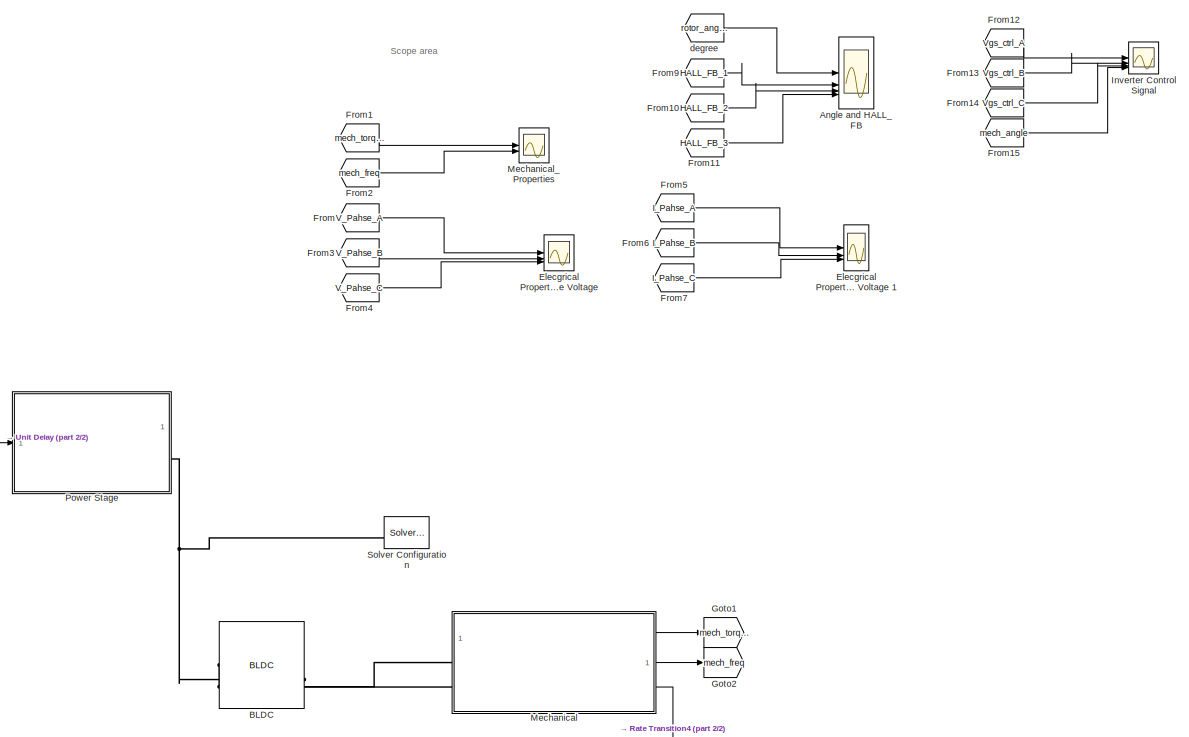
[diagram: root canvas - part 1/2, right side, full height]
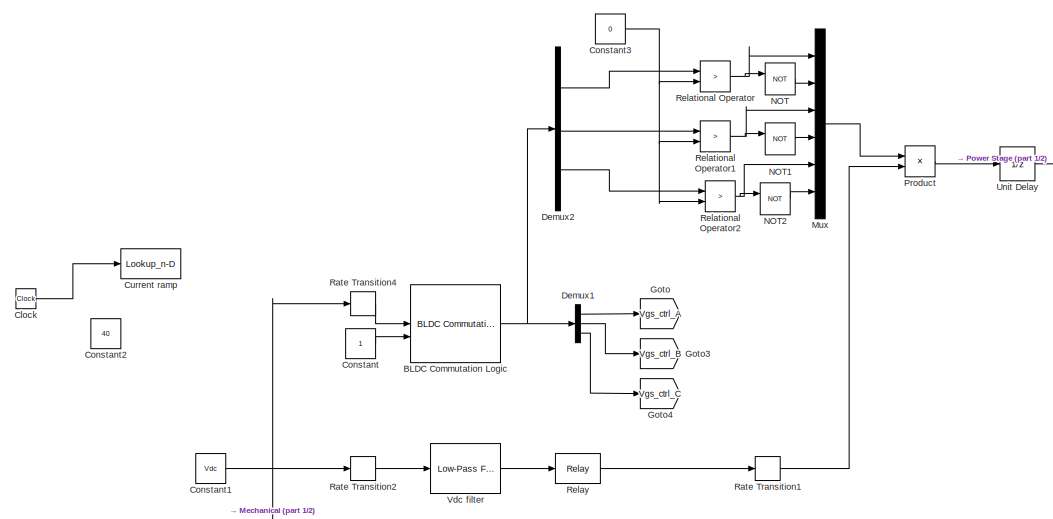
[diagram: root canvas - part 2/2, middle left region]
MODEL slx_6b9ccae32374
KIND model
CONFIG AbsTol = auto
CONFIG EnableMultiTasking = off
CONFIG FixedStep = auto
CONFIG MaxStep = auto
CONFIG MinStep = auto
CONFIG RelTol = 1e-3
CONFIG SampleTimeConstraint = Unconstrained
CONFIG SolverName = VariableStepAuto
CONFIG StartTime = 0.0
CONFIG StopTime = 1
BLOCK [Scope] Angle and HALL_FB
  Floating = off
  NumInputPorts = 4
  ScopeSpecificationString = Simulink.scopes.TimeScopeBlockCfg('CurrentConfiguration', extmgr.ConfigurationSet(extmgr.Configuration('Core','General UI',true),extmgr.Configuration('Core','Source UI',true),extmgr.Configuration('Sources','WiredSimulink',true,'DataLoggingVariableName','ScopeData4'),extmgr.Configuration('Visuals','Time Domain',true,'SerializedDisplays',{struct('MinYLimReal','-171.66121','MaxYLimReal','171.45367','...<+4105ch>
BLOCK [Reference] BLDC  REF=ee_lib/Electromechanical/Permanent Magnet/BLDC
  SourceBlock = ee_lib/Electromechanical/Permanent Magnet/BLDC
  SourceType = BLDC
BLOCK [Reference] BLDC Commutation Logic  REF=eeBldcCommutationLogic/BLDC Commutation Logic
  SourceBlock = eeBldcCommutationLogic/BLDC Commutation Logic
  SourceType = BLDC Commutation Logic
BLOCK [Clock] Clock
  Commented = on
BLOCK [Constant] Constant
BLOCK [Constant] Constant1
  Value = Vdc
  VectorParams1D = off
BLOCK [Constant] Constant2
  Value = 40
BLOCK [Constant] Constant3
  Value = 0
BLOCK [Lookup_n-D] Current ramp
  BreakpointsForDimension1 = [0 0.5 1]
  Commented = on
  InputPortMap = u0
  InternalRulePriority = Speed
  NumberOfTableDimensions = 1
  RndMeth = Simplest
  Table = [0 iref iref]
BLOCK [Demux] Demux1
  Outputs = 3
BLOCK [Demux] Demux2
  Outputs = 3
BLOCK [Scope] Elecgrical Properties Phase Voltage 
  Floating = off
  NumInputPorts = 3
  ScopeSpecificationString = Simulink.scopes.TimeScopeBlockCfg('CurrentConfiguration', extmgr.ConfigurationSet(extmgr.Configuration('Core','General UI',true),extmgr.Configuration('Core','Source UI',true),extmgr.Configuration('Sources','WiredSimulink',true,'DataLoggingVariableName','ScopeData3'),extmgr.Configuration('Visuals','Time Domain',true,'SerializedDisplays',{struct('MinYLimReal','-7.28133','MaxYLimReal','55.16499','YLa...<+2946ch>
BLOCK [Scope] Elecgrical Properties Phase Voltage 1
  Floating = off
  NumInputPorts = 3
  ScopeSpecificationString = Simulink.scopes.TimeScopeBlockCfg('CurrentConfiguration', extmgr.ConfigurationSet(extmgr.Configuration('Core','General UI',true),extmgr.Configuration('Core','Source UI',true),extmgr.Configuration('Sources','WiredSimulink',true,'DataLoggingVariableName','ScopeData1'),extmgr.Configuration('Visuals','Time Domain',true,'SerializedDisplays',{struct('MinYLimReal','-7.29838','MaxYLimReal','55.17035','YLa...<+2927ch>
BLOCK [From] From
  GotoTag = V_Pahse_A
  TagVisibility = global
BLOCK [From] From1
  GotoTag = mech_torque
BLOCK [From] From10
  GotoTag = HALL_FB_2
  TagVisibility = global
BLOCK [From] From11
  GotoTag = HALL_FB_3
  TagVisibility = global
BLOCK [From] From12
  GotoTag = Vgs_ctrl_A
  TagVisibility = global
BLOCK [From] From13
  GotoTag = Vgs_ctrl_B
  TagVisibility = global
BLOCK [From] From14
  GotoTag = Vgs_ctrl_C
  TagVisibility = global
BLOCK [From] From15
  GotoTag = mech_angle
  TagVisibility = global
BLOCK [From] From2
  GotoTag = mech_freq
BLOCK [From] From3
  GotoTag = V_Pahse_B
  TagVisibility = global
BLOCK [From] From4
  GotoTag = V_Pahse_C
  TagVisibility = global
BLOCK [From] From5
  GotoTag = I_Pahse_A
  TagVisibility = global
BLOCK [From] From6
  GotoTag = I_Pahse_B
  TagVisibility = global
BLOCK [From] From7
  GotoTag = I_Pahse_C
  TagVisibility = global
BLOCK [From] From9
  GotoTag = HALL_FB_1
  TagVisibility = global
BLOCK [Goto] Goto
  GotoTag = Vgs_ctrl_A
  TagVisibility = global
BLOCK [Goto] Goto1
  GotoTag = mech_torque
BLOCK [Goto] Goto2
  GotoTag = mech_freq
BLOCK [Goto] Goto3
  GotoTag = Vgs_ctrl_B
  TagVisibility = global
BLOCK [Goto] Goto4
  GotoTag = Vgs_ctrl_C
  TagVisibility = global
BLOCK [Scope] Inverter Control Signal
  Floating = off
  NumInputPorts = 4
  ScopeSpecificationString = Simulink.scopes.TimeScopeBlockCfg('CurrentConfiguration', extmgr.ConfigurationSet(extmgr.Configuration('Core','General UI',true),extmgr.Configuration('Core','Source UI',true),extmgr.Configuration('Sources','WiredSimulink',true,'DataLoggingVariableName','ScopeData1'),extmgr.Configuration('Visuals','Time Domain',true,'SerializedDisplays',{struct('MinYLimReal','-1.01815','MaxYLimReal','1.11895','YLab...<+4090ch>
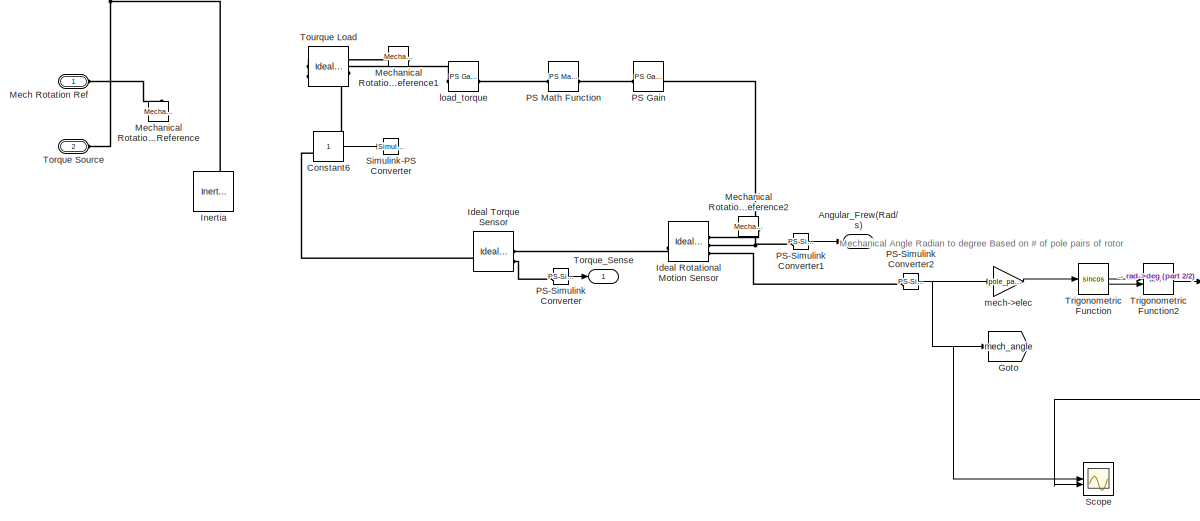
[diagram: Mechanical - part 1/2, center side, full height]
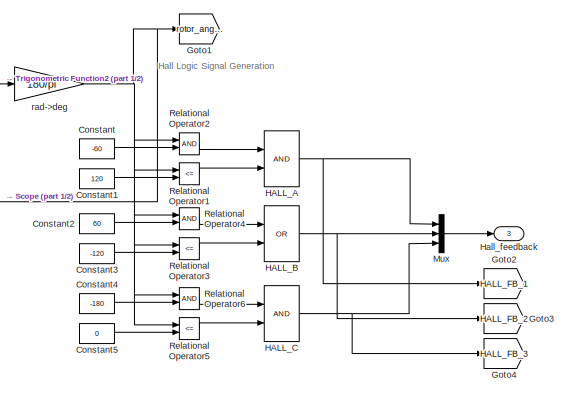
[diagram: Mechanical - part 2/2, bottom right region]
BLOCK [SubSystem] Mechanical
BLOCK [Outport] Mechanical/Angular_Frew(Rad//s)
  Port = 2
BLOCK [Constant] Mechanical/Constant
  Value = -60
BLOCK [Constant] Mechanical/Constant1
  Value = 120
BLOCK [Constant] Mechanical/Constant2
  Value = 60
BLOCK [Constant] Mechanical/Constant3
  Value = -120
BLOCK [Constant] Mechanical/Constant4
  Value = -180
BLOCK [Constant] Mechanical/Constant5
  Value = 0
BLOCK [Constant] Mechanical/Constant6
  Commented = on
BLOCK [Goto] Mechanical/Goto
  GotoTag = mech_angle
  TagVisibility = global
BLOCK [Goto] Mechanical/Goto1
  GotoTag = rotor_angle_degree
  TagVisibility = global
BLOCK [Goto] Mechanical/Goto2
  GotoTag = HALL_FB_1
  TagVisibility = global
BLOCK [Goto] Mechanical/Goto3
  GotoTag = HALL_FB_2
  TagVisibility = global
BLOCK [Goto] Mechanical/Goto4
  GotoTag = HALL_FB_3
  TagVisibility = global
BLOCK [Logic] Mechanical/HALL_A
  AllPortsSameDT = off
  OutDataTypeStr = boolean
BLOCK [Logic] Mechanical/HALL_B
  AllPortsSameDT = off
  Operator = OR
  OutDataTypeStr = boolean
BLOCK [Logic] Mechanical/HALL_C
  AllPortsSameDT = off
  OutDataTypeStr = boolean
BLOCK [Outport] Mechanical/Hall_feedback
  Port = 3
  VectorParamsAs1DForOutWhenUnconnected = off
BLOCK [Reference] Mechanical/Ideal Rotational Motion Sensor  REF=fl_lib/Mechanical/Mechanical Sensors/Ideal Rotational
Motion Sensor
  SourceBlock = fl_lib/Mechanical/Mechanical Sensors/Ideal Rotational\nMotion Sensor
  SourceType = Ideal Rotational\nMotion Sensor
BLOCK [Reference] Mechanical/Ideal Torque Sensor  REF=fl_lib/Mechanical/Mechanical Sensors/Ideal Torque Sensor
  SourceBlock = fl_lib/Mechanical/Mechanical Sensors/Ideal Torque Sensor
  SourceType = Ideal Torque Sensor
BLOCK [Reference] Mechanical/Inertia  REF=fl_lib/Mechanical/Rotational Elements/Inertia
  NameLocation = right
  SourceBlock = fl_lib/Mechanical/Rotational Elements/Inertia
  SourceType = Inertia
BLOCK [PMIOPort] Mechanical/Mech Rotation Ref
  Side = Left
BLOCK [Reference] Mechanical/Mechanical Rotational Reference  REF=fl_lib/Mechanical/Rotational Elements/Mechanical
Rotational Reference
  NameLocation = right
  SourceBlock = fl_lib/Mechanical/Rotational Elements/Mechanical\nRotational Reference
  SourceType = Mechanical\nRotational Reference
BLOCK [Reference] Mechanical/Mechanical Rotational Reference1  REF=fl_lib/Mechanical/Rotational Elements/Mechanical
Rotational Reference
  NameLocation = top
  SourceBlock = fl_lib/Mechanical/Rotational Elements/Mechanical\nRotational Reference
  SourceType = Mechanical\nRotational Reference
BLOCK [Reference] Mechanical/Mechanical Rotational Reference2  REF=fl_lib/Mechanical/Rotational Elements/Mechanical
Rotational Reference
  NameLocation = top
  SourceBlock = fl_lib/Mechanical/Rotational Elements/Mechanical\nRotational Reference
  SourceType = Mechanical\nRotational Reference
BLOCK [Mux] Mechanical/Mux
  DisplayOption = bar
  Inputs = 3
BLOCK [Reference] Mechanical/PS Gain  REF=fl_lib/Physical Signals/Functions/PS Gain
  SourceBlock = fl_lib/Physical Signals/Functions/PS Gain
  SourceType = PS Gain
BLOCK [Reference] Mechanical/PS Math Function  REF=fl_lib/Physical Signals/Functions/PS Math Function
  SourceBlock = fl_lib/Physical Signals/Functions/PS Math Function
  SourceType = PS Math Function
BLOCK [Reference] Mechanical/PS-Simulink Converter  REF=nesl_utility/PS-Simulink
Converter
  SourceBlock = nesl_utility/PS-Simulink\nConverter
  SourceType = PS-Simulink\nConverter
BLOCK [Reference] Mechanical/PS-Simulink Converter1  REF=nesl_utility/PS-Simulink
Converter
  SourceBlock = nesl_utility/PS-Simulink\nConverter
  SourceType = PS-Simulink\nConverter
BLOCK [Reference] Mechanical/PS-Simulink Converter2  REF=nesl_utility/PS-Simulink
Converter
  SourceBlock = nesl_utility/PS-Simulink\nConverter
  SourceType = PS-Simulink\nConverter
BLOCK [RelationalOperator] Mechanical/Relational Operator1
  Operator = <=
BLOCK [RelationalOperator] Mechanical/Relational Operator2
BLOCK [RelationalOperator] Mechanical/Relational Operator3
  Operator = <=
BLOCK [RelationalOperator] Mechanical/Relational Operator4
BLOCK [RelationalOperator] Mechanical/Relational Operator5
  Operator = <=
BLOCK [RelationalOperator] Mechanical/Relational Operator6
BLOCK [Scope] Mechanical/Scope
  Floating = off
  NumInputPorts = 2
  ScopeSpecificationString = Simulink.scopes.TimeScopeBlockCfg('CurrentConfiguration', extmgr.ConfigurationSet(extmgr.Configuration('Core','General UI',true),extmgr.Configuration('Core','Source UI',true),extmgr.Configuration('Sources','WiredSimulink',true,'DataLoggingVariableName','ScopeData2'),extmgr.Configuration('Visuals','Time Domain',true,'SerializedDisplays',{struct('MinYLimReal','-0.78536','MaxYLimReal','6.61575','YLab...<+2196ch>
BLOCK [Reference] Mechanical/Simulink-PS Converter  REF=nesl_utility/Simulink-PS
Converter
  Commented = on
  SourceBlock = nesl_utility/Simulink-PS\nConverter
  SourceType = Simulink-PS\nConverter
BLOCK [PMIOPort] Mechanical/Torque Source
  Port = 2
  Side = Left
BLOCK [Outport] Mechanical/Torque_Sense
BLOCK [Reference] Mechanical/Tourque Load  REF=fl_lib/Mechanical/Mechanical Sources/Ideal Torque Source
  NameLocation = top
  SourceBlock = fl_lib/Mechanical/Mechanical Sources/Ideal Torque Source
  SourceType = Ideal Torque Source
BLOCK [Trigonometry] Mechanical/Trigonometric Function
  Operator = sincos
BLOCK [Trigonometry] Mechanical/Trigonometric Function2
  Operator = atan2
BLOCK [Reference] Mechanical/load_torque  REF=fl_lib/Physical Signals/Functions/PS Gain
  SourceBlock = fl_lib/Physical Signals/Functions/PS Gain
  SourceType = PS Gain
BLOCK [Gain] Mechanical/mech->elec
  Gain = pole_pair_number
BLOCK [Gain] Mechanical/rad->deg
  Gain = 180/pi
  OutDataTypeStr = Inherit: Same as input
  ParamDataTypeStr = Inherit: Same as input
  SaturateOnIntegerOverflow = on
BLOCK [Scope] Mechanical_Properties
  Floating = off
  NumInputPorts = 2
  ScopeSpecificationString = Simulink.scopes.TimeScopeBlockCfg('CurrentConfiguration', extmgr.ConfigurationSet(extmgr.Configuration('Core','General UI',true),extmgr.Configuration('Core','Source UI',true),extmgr.Configuration('Sources','WiredSimulink',true,'DataLoggingVariableName','ScopeData2'),extmgr.Configuration('Visuals','Time Domain',true,'SerializedDisplays',{struct('MinYLimReal','-1.00000','MaxYLimReal','1.00000','YLab...<+2170ch>
BLOCK [Mux] Mux
  DisplayOption = bar
  Inputs = 6
BLOCK [Logic] NOT
  AllPortsSameDT = off
  IconShape = distinctive
  Operator = NOT
  OutDataTypeStr = boolean
BLOCK [Logic] NOT1
  AllPortsSameDT = off
  IconShape = distinctive
  Operator = NOT
  OutDataTypeStr = boolean
BLOCK [Logic] NOT2
  AllPortsSameDT = off
  IconShape = distinctive
  Operator = NOT
  OutDataTypeStr = boolean
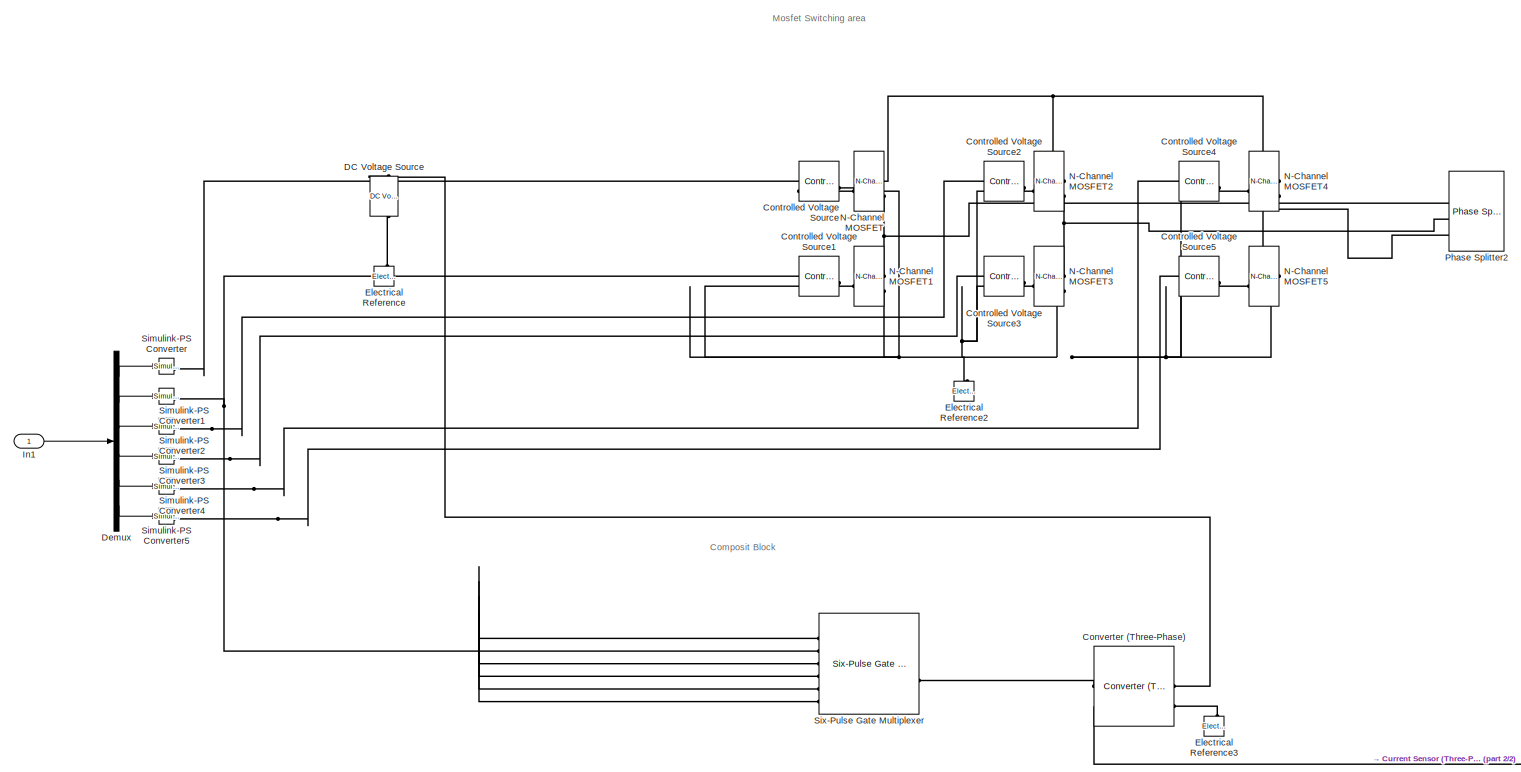
[diagram: Power Stage - part 1/2, left side, full height]
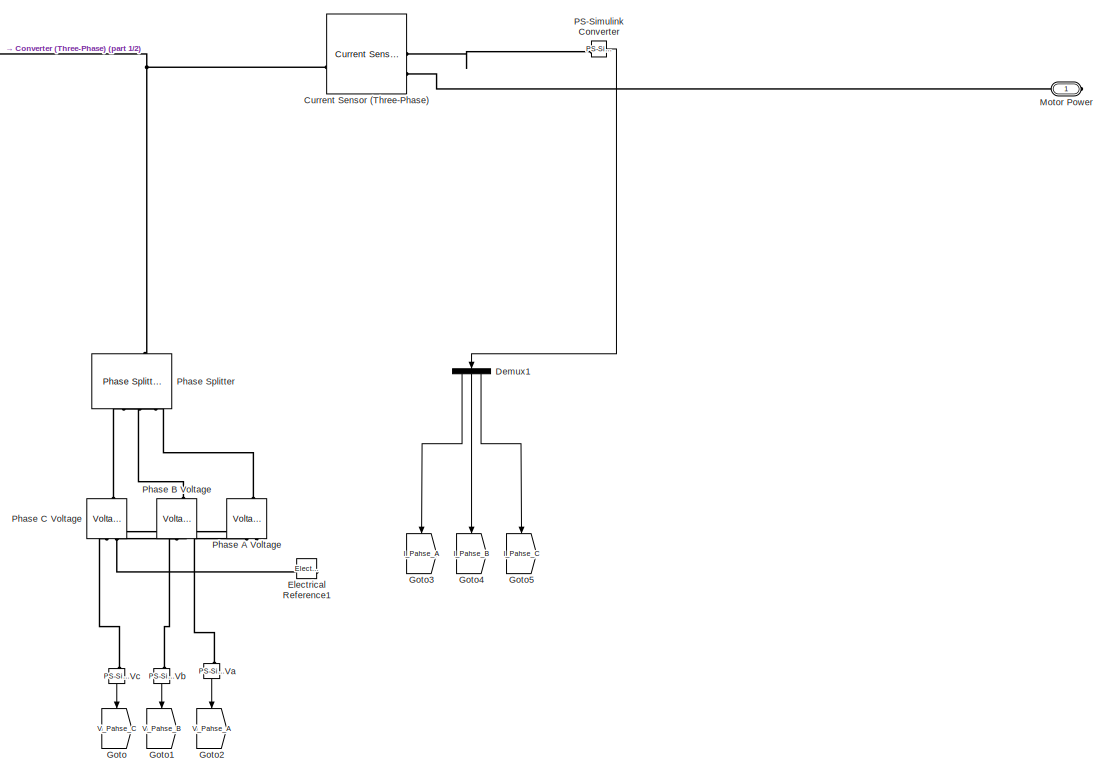
[diagram: Power Stage - part 2/2, right side, full height]
BLOCK [SubSystem] Power Stage
BLOCK [Reference] Power Stage/Controlled Voltage Source  REF=fl_lib/Electrical/Electrical Sources/Controlled Voltage
Source
  Commented = on
  SourceBlock = fl_lib/Electrical/Electrical Sources/Controlled Voltage\nSource
  SourceType = Controlled Voltage\nSource
BLOCK [Reference] Power Stage/Controlled Voltage Source1  REF=fl_lib/Electrical/Electrical Sources/Controlled Voltage
Source
  Commented = on
  SourceBlock = fl_lib/Electrical/Electrical Sources/Controlled Voltage\nSource
  SourceType = Controlled Voltage\nSource
BLOCK [Reference] Power Stage/Controlled Voltage Source2  REF=fl_lib/Electrical/Electrical Sources/Controlled Voltage
Source
  Commented = on
  SourceBlock = fl_lib/Electrical/Electrical Sources/Controlled Voltage\nSource
  SourceType = Controlled Voltage\nSource
BLOCK [Reference] Power Stage/Controlled Voltage Source3  REF=fl_lib/Electrical/Electrical Sources/Controlled Voltage
Source
  Commented = on
  SourceBlock = fl_lib/Electrical/Electrical Sources/Controlled Voltage\nSource
  SourceType = Controlled Voltage\nSource
BLOCK [Reference] Power Stage/Controlled Voltage Source4  REF=fl_lib/Electrical/Electrical Sources/Controlled Voltage
Source
  Commented = on
  SourceBlock = fl_lib/Electrical/Electrical Sources/Controlled Voltage\nSource
  SourceType = Controlled Voltage\nSource
BLOCK [Reference] Power Stage/Controlled Voltage Source5  REF=fl_lib/Electrical/Electrical Sources/Controlled Voltage
Source
  Commented = on
  SourceBlock = fl_lib/Electrical/Electrical Sources/Controlled Voltage\nSource
  SourceType = Controlled Voltage\nSource
BLOCK [Reference] Power Stage/Converter (Three-Phase)  REF=ee_lib/Semiconductors &
Converters/Converters/Converter
(Three-Phase)
  SourceBlock = ee_lib/Semiconductors &\nConverters/Converters/Converter\n(Three-Phase)
  SourceType = Converter\n(Three-Phase)
BLOCK [Reference] Power Stage/Current Sensor (Three-Phase)  REF=ee_lib/Sensors &
Transducers/Current Sensor
(Three-Phase)
  SourceBlock = ee_lib/Sensors &\nTransducers/Current Sensor\n(Three-Phase)
  SourceType = Current Sensor\n(Three-Phase)
BLOCK [Reference] Power Stage/DC Voltage Source  REF=ee_lib/Additional
Components/SPICE Sources/DC Voltage Source
  NameLocation = right
  SourceBlock = ee_lib/Additional\nComponents/SPICE Sources/DC Voltage Source
  SourceType = DC Voltage Source
BLOCK [Demux] Power Stage/Demux
  Outputs = 6
BLOCK [Demux] Power Stage/Demux1
  NameLocation = left
  Outputs = 3
BLOCK [Reference] Power Stage/Electrical Reference  REF=fl_lib/Electrical/Electrical Elements/Electrical Reference
  NameLocation = right
  SourceBlock = fl_lib/Electrical/Electrical Elements/Electrical Reference
  SourceType = Electrical Reference
BLOCK [Reference] Power Stage/Electrical Reference1  REF=fl_lib/Electrical/Electrical Elements/Electrical Reference
  NameLocation = top
  SourceBlock = fl_lib/Electrical/Electrical Elements/Electrical Reference
  SourceType = Electrical Reference
BLOCK [Reference] Power Stage/Electrical Reference2  REF=fl_lib/Electrical/Electrical Elements/Electrical Reference
  Commented = on
  NameLocation = right
  SourceBlock = fl_lib/Electrical/Electrical Elements/Electrical Reference
  SourceType = Electrical Reference
BLOCK [Reference] Power Stage/Electrical Reference3  REF=fl_lib/Electrical/Electrical Elements/Electrical Reference
  NameLocation = right
  SourceBlock = fl_lib/Electrical/Electrical Elements/Electrical Reference
  SourceType = Electrical Reference
BLOCK [Goto] Power Stage/Goto
  GotoTag = V_Pahse_C
  NameLocation = left
  TagVisibility = global
BLOCK [Goto] Power Stage/Goto1
  GotoTag = V_Pahse_B
  NameLocation = left
  TagVisibility = global
BLOCK [Goto] Power Stage/Goto2
  GotoTag = V_Pahse_A
  NameLocation = left
  TagVisibility = global
BLOCK [Goto] Power Stage/Goto3
  GotoTag = I_Pahse_A
  NameLocation = left
  TagVisibility = global
BLOCK [Goto] Power Stage/Goto4
  GotoTag = I_Pahse_B
  NameLocation = left
  TagVisibility = global
BLOCK [Goto] Power Stage/Goto5
  GotoTag = I_Pahse_C
  NameLocation = left
  TagVisibility = global
BLOCK [Inport] Power Stage/In1
BLOCK [PMIOPort] Power Stage/Motor Power
  NameLocation = top
  Side = Right
BLOCK [Reference] Power Stage/N-Channel MOSFET  REF=ee_lib/Semiconductors &
Converters/N-Channel MOSFET
  Commented = on
  SourceBlock = ee_lib/Semiconductors &\nConverters/N-Channel MOSFET
  SourceType = N-Channel MOSFET
BLOCK [Reference] Power Stage/N-Channel MOSFET1  REF=ee_lib/Semiconductors &
Converters/N-Channel MOSFET
  Commented = on
  SourceBlock = ee_lib/Semiconductors &\nConverters/N-Channel MOSFET
  SourceType = N-Channel MOSFET
BLOCK [Reference] Power Stage/N-Channel MOSFET2  REF=ee_lib/Semiconductors &
Converters/N-Channel MOSFET
  Commented = on
  SourceBlock = ee_lib/Semiconductors &\nConverters/N-Channel MOSFET
  SourceType = N-Channel MOSFET
BLOCK [Reference] Power Stage/N-Channel MOSFET3  REF=ee_lib/Semiconductors &
Converters/N-Channel MOSFET
  Commented = on
  SourceBlock = ee_lib/Semiconductors &\nConverters/N-Channel MOSFET
  SourceType = N-Channel MOSFET
BLOCK [Reference] Power Stage/N-Channel MOSFET4  REF=ee_lib/Semiconductors &
Converters/N-Channel MOSFET
  Commented = on
  SourceBlock = ee_lib/Semiconductors &\nConverters/N-Channel MOSFET
  SourceType = N-Channel MOSFET
BLOCK [Reference] Power Stage/N-Channel MOSFET5  REF=ee_lib/Semiconductors &
Converters/N-Channel MOSFET
  Commented = on
  SourceBlock = ee_lib/Semiconductors &\nConverters/N-Channel MOSFET
  SourceType = N-Channel MOSFET
BLOCK [Reference] Power Stage/PS-Simulink Converter  REF=nesl_utility/PS-Simulink
Converter
  SourceBlock = nesl_utility/PS-Simulink\nConverter
  SourceType = PS-Simulink\nConverter
BLOCK [Reference] Power Stage/Phase A Voltage  REF=fl_lib/Electrical/Electrical Sensors/Voltage Sensor
  NameLocation = right
  SourceBlock = fl_lib/Electrical/Electrical Sensors/Voltage Sensor
  SourceType = Voltage Sensor
BLOCK [Reference] Power Stage/Phase B Voltage  REF=fl_lib/Electrical/Electrical Sensors/Voltage Sensor
  NameLocation = right
  SourceBlock = fl_lib/Electrical/Electrical Sensors/Voltage Sensor
  SourceType = Voltage Sensor
BLOCK [Reference] Power Stage/Phase C Voltage  REF=fl_lib/Electrical/Electrical Sensors/Voltage Sensor
  NameLocation = right
  SourceBlock = fl_lib/Electrical/Electrical Sensors/Voltage Sensor
  SourceType = Voltage Sensor
BLOCK [Reference] Power Stage/Phase Splitter  REF=ee_lib/Connectors &
References/Phase Splitter
  NameLocation = left
  SourceBlock = ee_lib/Connectors &\nReferences/Phase Splitter
  SourceType = Phase Splitter
BLOCK [Reference] Power Stage/Phase Splitter2  REF=ee_lib/Connectors &
References/Phase Splitter
  Commented = on
  NameLocation = top
  SourceBlock = ee_lib/Connectors &\nReferences/Phase Splitter
  SourceType = Phase Splitter
BLOCK [Reference] Power Stage/Simulink-PS Converter  REF=nesl_utility/Simulink-PS
Converter
  SourceBlock = nesl_utility/Simulink-PS\nConverter
  SourceType = Simulink-PS\nConverter
BLOCK [Reference] Power Stage/Simulink-PS Converter1  REF=nesl_utility/Simulink-PS
Converter
  SourceBlock = nesl_utility/Simulink-PS\nConverter
  SourceType = Simulink-PS\nConverter
BLOCK [Reference] Power Stage/Simulink-PS Converter2  REF=nesl_utility/Simulink-PS
Converter
  SourceBlock = nesl_utility/Simulink-PS\nConverter
  SourceType = Simulink-PS\nConverter
BLOCK [Reference] Power Stage/Simulink-PS Converter3  REF=nesl_utility/Simulink-PS
Converter
  SourceBlock = nesl_utility/Simulink-PS\nConverter
  SourceType = Simulink-PS\nConverter
BLOCK [Reference] Power Stage/Simulink-PS Converter4  REF=nesl_utility/Simulink-PS
Converter
  SourceBlock = nesl_utility/Simulink-PS\nConverter
  SourceType = Simulink-PS\nConverter
BLOCK [Reference] Power Stage/Simulink-PS Converter5  REF=nesl_utility/Simulink-PS
Converter
  SourceBlock = nesl_utility/Simulink-PS\nConverter
  SourceType = Simulink-PS\nConverter
BLOCK [Reference] Power Stage/Six-Pulse Gate Multiplexer  REF=ee_lib/Semiconductors &
Converters/Converters/Six-Pulse Gate
Multiplexer
  SourceBlock = ee_lib/Semiconductors &\nConverters/Converters/Six-Pulse Gate\nMultiplexer
  SourceType = Six-Pulse Gate\nMultiplexer
BLOCK [Reference] Power Stage/Va  REF=nesl_utility/PS-Simulink
Converter
  NameLocation = left
  SourceBlock = nesl_utility/PS-Simulink\nConverter
  SourceType = PS-Simulink\nConverter
BLOCK [Reference] Power Stage/Vb  REF=nesl_utility/PS-Simulink
Converter
  NameLocation = left
  SourceBlock = nesl_utility/PS-Simulink\nConverter
  SourceType = PS-Simulink\nConverter
BLOCK [Reference] Power Stage/Vc  REF=nesl_utility/PS-Simulink
Converter
  NameLocation = left
  SourceBlock = nesl_utility/PS-Simulink\nConverter
  SourceType = PS-Simulink\nConverter
BLOCK [Product] Product
BLOCK [RateTransition] Rate Transition1
  OutPortSampleTime = Ts
BLOCK [RateTransition] Rate Transition2
  OutPortSampleTime = Tsc
BLOCK [RateTransition] Rate Transition4
  OutPortSampleTime = Tsc
BLOCK [RelationalOperator] Relational Operator
  InputSameDT = off
  Operator = >
  OutDataTypeStr = boolean
  RndMeth = Simplest
BLOCK [RelationalOperator] Relational Operator1
  InputSameDT = off
  Operator = >
  OutDataTypeStr = boolean
  RndMeth = Simplest
BLOCK [RelationalOperator] Relational Operator2
  InputSameDT = off
  Operator = >
  OutDataTypeStr = boolean
  RndMeth = Simplest
BLOCK [Relay] Relay
  OffSwitchValue = Vdc/4
  OnSwitchValue = Vdc/2
BLOCK [Reference] Solver Configuration  REF=nesl_utility/Solver
Configuration
  NameLocation = top
  SourceBlock = nesl_utility/Solver\nConfiguration
  SourceType = Solver\nConfiguration
BLOCK [UnitDelay] Unit Delay
  HasFrameUpgradeWarning = on
  SampleTime = Ts
BLOCK [Reference] Vdc filter  REF=eeGeneralControl/Low-Pass Filter
(Discrete or Continuous)
  SourceBlock = eeGeneralControl/Low-Pass Filter\n(Discrete or Continuous)
  SourceType = Low-Pass Filter (Discrete or Continuous)
BLOCK [From] degree
  GotoTag = rotor_angle_degree
  TagVisibility = global
ANNOTATION (root): Scope area
ANNOTATION Mechanical: Hall Logic Signal Generation
ANNOTATION Mechanical: Mechanical Angle Radian to degree Based on # of pole pairs of rotor
ANNOTATION Power Stage: Composit Block
ANNOTATION Power Stage: Mosfet Switching area
NET BLDC Commutation Logic:1 -> Demux1:1, Demux2:1
LINE Clock:1 -> Current ramp:1
LINE Constant1:1 -> Rate Transition2:1
NET Constant3:1 -> Relational Operator1:2, Relational Operator2:2, Relational Operator:2
LINE Constant:1 -> BLDC Commutation Logic:2
LINE Demux1:1 -> Goto:1
LINE Demux1:2 -> Goto3:1
LINE Demux1:3 -> Goto4:1
LINE Demux2:1 -> Relational Operator:1
LINE Demux2:2 -> Relational Operator1:1
LINE Demux2:3 -> Relational Operator2:1
LINE From10:1 -> Angle and HALL_FB:3
LINE From11:1 -> Angle and HALL_FB:4
LINE From12:1 -> Inverter Control Signal:1
LINE From13:1 -> Inverter Control Signal:2
LINE From14:1 -> Inverter Control Signal:3
LINE From15:1 -> Inverter Control Signal:4
LINE From1:1 -> Mechanical_Properties:1
LINE From2:1 -> Mechanical_Properties:2
LINE From3:1 -> Elecgrical Properties Phase Voltage :2
LINE From4:1 -> Elecgrical Properties Phase Voltage :3
LINE From5:1 -> Elecgrical Properties Phase Voltage 1:1
LINE From6:1 -> Elecgrical Properties Phase Voltage 1:2
LINE From7:1 -> Elecgrical Properties Phase Voltage 1:3
LINE From9:1 -> Angle and HALL_FB:2
LINE From:1 -> Elecgrical Properties Phase Voltage :1
LINE Mechanical/Constant1:1 -> Mechanical/Relational Operator1:2
LINE Mechanical/Constant2:1 -> Mechanical/Relational Operator4:2
LINE Mechanical/Constant3:1 -> Mechanical/Relational Operator3:2
LINE Mechanical/Constant4:1 -> Mechanical/Relational Operator6:2
LINE Mechanical/Constant5:1 -> Mechanical/Relational Operator5:2
LINE Mechanical/Constant6:1 -> Mechanical/Simulink-PS Converter:1
LINE Mechanical/Constant:1 -> Mechanical/Relational Operator2:2
NET Mechanical/HALL_A:1 -> Mechanical/Goto2:1, Mechanical/Mux:1
NET Mechanical/HALL_B:1 -> Mechanical/Goto3:1, Mechanical/Mux:2
NET Mechanical/HALL_C:1 -> Mechanical/Goto4:1, Mechanical/Mux:3
LINE Mechanical/Mux:1 -> Mechanical/Hall_feedback:1
LINE Mechanical/PS-Simulink Converter1:1 -> Mechanical/Angular_Frew(Rad//s):1
NET Mechanical/PS-Simulink Converter2:1 -> Mechanical/Goto:1, Mechanical/Scope:1, Mechanical/mech->elec:1
LINE Mechanical/PS-Simulink Converter:1 -> Mechanical/Torque_Sense:1
LINE Mechanical/Relational Operator1:1 -> Mechanical/HALL_A:2
LINE Mechanical/Relational Operator2:1 -> Mechanical/HALL_A:1
LINE Mechanical/Relational Operator3:1 -> Mechanical/HALL_B:2
LINE Mechanical/Relational Operator4:1 -> Mechanical/HALL_B:1
LINE Mechanical/Relational Operator5:1 -> Mechanical/HALL_C:2
LINE Mechanical/Relational Operator6:1 -> Mechanical/HALL_C:1
LINE Mechanical/Trigonometric Function2:1 -> Mechanical/rad->deg:1
LINE Mechanical/Trigonometric Function:1 -> Mechanical/Trigonometric Function2:1
LINE Mechanical/Trigonometric Function:2 -> Mechanical/Trigonometric Function2:2
LINE Mechanical/mech->elec:1 -> Mechanical/Trigonometric Function:1
NET Mechanical/rad->deg:1 -> Mechanical/Goto1:1, Mechanical/Relational Operator1:1, Mechanical/Relational Operator2:1, Mechanical/Relational Operator3:1, Mechanical/Relational Operator4:1, Mechanical/Relational Operator5:1, Mechanical/Relational Operator6:1, Mechanical/Scope:2
LINE Mechanical:1 -> Goto1:1
LINE Mechanical:2 -> Goto2:1
LINE Mechanical:3 -> Rate Transition4:1
LINE Mux:1 -> Product:1
LINE NOT1:1 -> Mux:4
LINE NOT2:1 -> Mux:6
LINE NOT:1 -> Mux:2
LINE Power Stage/Demux1:1 -> Power Stage/Goto3:1
LINE Power Stage/Demux1:2 -> Power Stage/Goto4:1
LINE Power Stage/Demux1:3 -> Power Stage/Goto5:1
LINE Power Stage/Demux:1 -> Power Stage/Simulink-PS Converter:1
LINE Power Stage/Demux:2 -> Power Stage/Simulink-PS Converter1:1
LINE Power Stage/Demux:3 -> Power Stage/Simulink-PS Converter2:1
LINE Power Stage/Demux:4 -> Power Stage/Simulink-PS Converter3:1
LINE Power Stage/Demux:5 -> Power Stage/Simulink-PS Converter4:1
LINE Power Stage/Demux:6 -> Power Stage/Simulink-PS Converter5:1
LINE Power Stage/In1:1 -> Power Stage/Demux:1
LINE Power Stage/PS-Simulink Converter:1 -> Power Stage/Demux1:1
LINE Power Stage/Va:1 -> Power Stage/Goto2:1
LINE Power Stage/Vb:1 -> Power Stage/Goto1:1
LINE Power Stage/Vc:1 -> Power Stage/Goto:1
LINE Product:1 -> Unit Delay:1
LINE Rate Transition1:1 -> Product:2
LINE Rate Transition2:1 -> Vdc filter:1
LINE Rate Transition4:1 -> BLDC Commutation Logic:1
NET Relational Operator1:1 -> Mux:3, NOT1:1
NET Relational Operator2:1 -> Mux:5, NOT2:1
NET Relational Operator:1 -> Mux:1, NOT:1
LINE Relay:1 -> Rate Transition1:1
LINE Unit Delay:1 -> Power Stage:1
LINE Vdc filter:1 -> Relay:1
LINE degree:1 -> Angle and HALL_FB:1
PNET net1: BLDC:LConn1 -- Power Stage:RConn1 -- Solver Configuration:RConn1
PLINE BLDC:RConn1 -- Mechanical:LConn2
PLINE BLDC:RConn2 -- Mechanical:LConn1
PLINE Mechanical/Ideal Rotational Motion Sensor:LConn1 -- Mechanical/Ideal Torque Sensor:RConn1
PLINE Mechanical/Ideal Rotational Motion Sensor:RConn1 -- Mechanical/Mechanical Rotational Reference2:LConn1
PNET net2: Mechanical/Ideal Rotational Motion Sensor:RConn2 -- Mechanical/PS Gain:LConn1 -- Mechanical/PS-Simulink Converter1:LConn1
PLINE Mechanical/Ideal Rotational Motion Sensor:RConn3 -- Mechanical/PS-Simulink Converter2:LConn1
PNET net3: Mechanical/Ideal Torque Sensor:LConn1 -- Mechanical/Inertia:LConn1 -- Mechanical/Torque Source:RConn1 -- Mechanical/Tourque Load:LConn1
PLINE Mechanical/Ideal Torque Sensor:RConn2 -- Mechanical/PS-Simulink Converter:LConn1
PLINE Mechanical/Mech Rotation Ref:RConn1 -- Mechanical/Mechanical Rotational Reference:LConn1
PLINE Mechanical/Mechanical Rotational Reference1:LConn1 -- Mechanical/Tourque Load:RConn2
PLINE Mechanical/PS Gain:RConn1 -- Mechanical/PS Math Function:LConn1
PLINE Mechanical/PS Math Function:RConn1 -- Mechanical/load_torque:LConn1
PLINE Mechanical/Tourque Load:RConn1 -- Mechanical/load_torque:RConn1
PLINE Power Stage/Controlled Voltage Source1:LConn1 -- Power Stage/N-Channel MOSFET1:LConn1
PNET net4: Power Stage/Controlled Voltage Source1:RConn1 -- Power Stage/Simulink-PS Converter1:RConn1 -- Power Stage/Six-Pulse Gate Multiplexer:LConn2
PNET net5: Power Stage/Controlled Voltage Source1:RConn2 -- Power Stage/Controlled Voltage Source2:RConn2 -- Power Stage/Controlled Voltage Source3:RConn2 -- Power Stage/Controlled Voltage Source4:RConn2 -- Power Stage/Controlled Voltage Source5:RConn2 -- Power Stage/Controlled Voltage Source:RConn2 -- Power Stage/Electrical Reference2:LConn1 -- Power Stage/N-Channel MOSFET1:RConn2 -- Power Stage/N-Channel MOSFET3:RConn2 -- Power Stage/N-Channel MOSFET5:RConn2
PLINE Power Stage/Controlled Voltage Source2:LConn1 -- Power Stage/N-Channel MOSFET2:LConn1
PNET net6: Power Stage/Controlled Voltage Source2:RConn1 -- Power Stage/Simulink-PS Converter2:RConn1 -- Power Stage/Six-Pulse Gate Multiplexer:LConn3
PLINE Power Stage/Controlled Voltage Source3:LConn1 -- Power Stage/N-Channel MOSFET3:LConn1
PNET net7: Power Stage/Controlled Voltage Source3:RConn1 -- Power Stage/Simulink-PS Converter3:RConn1 -- Power Stage/Six-Pulse Gate Multiplexer:LConn4
PLINE Power Stage/Controlled Voltage Source4:LConn1 -- Power Stage/N-Channel MOSFET4:LConn1
PNET net8: Power Stage/Controlled Voltage Source4:RConn1 -- Power Stage/Simulink-PS Converter4:RConn1 -- Power Stage/Six-Pulse Gate Multiplexer:LConn5
PLINE Power Stage/Controlled Voltage Source5:LConn1 -- Power Stage/N-Channel MOSFET5:LConn1
PNET net9: Power Stage/Controlled Voltage Source5:RConn1 -- Power Stage/Simulink-PS Converter5:RConn1 -- Power Stage/Six-Pulse Gate Multiplexer:LConn6
PLINE Power Stage/Controlled Voltage Source:LConn1 -- Power Stage/N-Channel MOSFET:LConn1
PNET net10: Power Stage/Controlled Voltage Source:RConn1 -- Power Stage/Simulink-PS Converter:RConn1 -- Power Stage/Six-Pulse Gate Multiplexer:LConn1
PLINE Power Stage/Converter (Three-Phase):LConn1 -- Power Stage/Six-Pulse Gate Multiplexer:RConn1
PNET net11: Power Stage/Converter (Three-Phase):LConn2 -- Power Stage/Current Sensor (Three-Phase):LConn1 -- Power Stage/Phase Splitter:LConn1
PLINE Power Stage/Converter (Three-Phase):RConn1 -- Power Stage/DC Voltage Source:LConn1
PLINE Power Stage/Converter (Three-Phase):RConn2 -- Power Stage/Electrical Reference3:LConn1
PLINE Power Stage/Current Sensor (Three-Phase):RConn1 -- Power Stage/PS-Simulink Converter:LConn1
PLINE Power Stage/Current Sensor (Three-Phase):RConn2 -- Power Stage/Motor Power:RConn1
PLINE Power Stage/DC Voltage Source:RConn1 -- Power Stage/Electrical Reference:LConn1
PNET net12: Power Stage/Electrical Reference1:LConn1 -- Power Stage/Phase A Voltage:RConn2 -- Power Stage/Phase B Voltage:RConn2 -- Power Stage/Phase C Voltage:RConn2
PNET net13: Power Stage/N-Channel MOSFET1:RConn1 -- Power Stage/N-Channel MOSFET:RConn2 -- Power Stage/Phase Splitter2:RConn1
PNET net14: Power Stage/N-Channel MOSFET2:RConn1 -- Power Stage/N-Channel MOSFET4:RConn1 -- Power Stage/N-Channel MOSFET:RConn1
PNET net15: Power Stage/N-Channel MOSFET2:RConn2 -- Power Stage/N-Channel MOSFET3:RConn1 -- Power Stage/Phase Splitter2:RConn2
PNET net16: Power Stage/N-Channel MOSFET4:RConn2 -- Power Stage/N-Channel MOSFET5:RConn1 -- Power Stage/Phase Splitter2:RConn3
PLINE Power Stage/Phase A Voltage:LConn1 -- Power Stage/Phase Splitter:RConn1
PLINE Power Stage/Phase A Voltage:RConn1 -- Power Stage/Va:LConn1
PLINE Power Stage/Phase B Voltage:LConn1 -- Power Stage/Phase Splitter:RConn2
PLINE Power Stage/Phase B Voltage:RConn1 -- Power Stage/Vb:LConn1
PLINE Power Stage/Phase C Voltage:LConn1 -- Power Stage/Phase Splitter:RConn3
PLINE Power Stage/Phase C Voltage:RConn1 -- Power Stage/Vc:LConn1
note: NET lines group one-source signal fan-out (src -> all destinations, sorted); 1:1 wires keep LINE; PNET lines group multi-terminal physical nets as a canonical sorted terminal list (undirected conserving connections); 2-terminal nets keep the pairwise PLINE form
